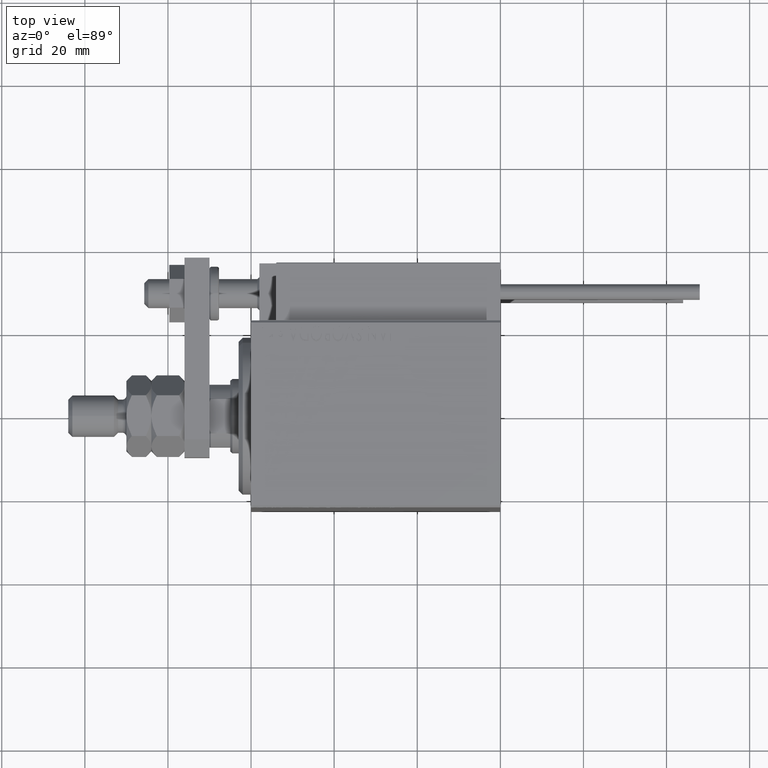
[diagram: clean part render]
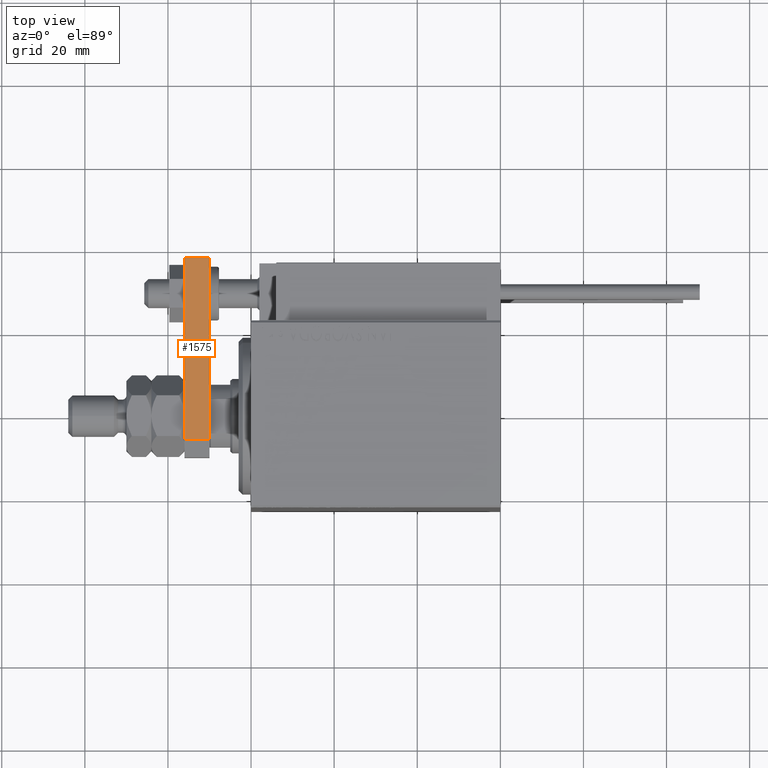
[diagram: same view with one face highlighted and labeled with its STEP entity id]
A machine part, top view. The second image highlights one B-rep face of the part: STEP entity #1575.
In plain terms, the highlighted planar face has unit normal (-0, -0, -1).
Its self-contained STEP definition (entity closure, byte-faithful):
#1053 = CARTESIAN_POINT ( 'NONE',  ( 10.00000000000000533, 4.239999999999986890, 6.000000000000000000 ) ) ;
#1575 = ADVANCED_FACE ( 'NONE', ( #2107 ), #30173, .F. ) ;
#2107 = FACE_OUTER_BOUND ( 'NONE', #35518, .T. ) ;
#2890 = DIRECTION ( 'NONE',  ( 7.228014483236695816E-17, -1.000000000000000000, 0.000000000000000000 ) ) ;
#3029 = LINE ( 'NONE', #3286, #21437 ) ;
#3286 = CARTESIAN_POINT ( 'NONE',  ( 10.00000000000000533, 0.000000000000000000, 6.000000000000000000 ) ) ;
#6557 = EDGE_CURVE ( 'NONE', #10306, #34316, #3029, .T. ) ;
#6580 = CARTESIAN_POINT ( 'NONE',  ( 10.00000000000000533, 0.000000000000000000, 6.000000000000000000 ) ) ;
#10306 = VERTEX_POINT ( 'NONE', #1053 ) ;
#10883 = CARTESIAN_POINT ( 'NONE',  ( 10.00000000000000533, 0.000000000000000000, 0.000000000000000000 ) ) ;
#12530 = ORIENTED_EDGE ( 'NONE', *, *, #27684, .T. ) ;
#14821 = LINE ( 'NONE', #10883, #21333 ) ;
#15830 = CARTESIAN_POINT ( 'NONE',  ( 10.00000000000000178, 48.00000000000000000, 6.000000000000000000 ) ) ;
#16558 = CARTESIAN_POINT ( 'NONE',  ( 10.00000000000000533, 4.239999999999986890, 6.000000000000000000 ) ) ;
#17356 = VERTEX_POINT ( 'NONE', #26680 ) ;
#21333 = VECTOR ( 'NONE', #26375, 1000.000000000000000 ) ;
#21437 = VECTOR ( 'NONE', #31365, 1000.000000000000000 ) ;
#25992 = DIRECTION ( 'NONE',  ( -1.000000000000000000, -7.228014483236695816E-17, 0.000000000000000000 ) ) ;
#26375 = DIRECTION ( 'NONE',  ( -7.228014483236695816E-17, 1.000000000000000000, 0.000000000000000000 ) ) ;
#26523 = VERTEX_POINT ( 'NONE', #37238 ) ;
#26680 = CARTESIAN_POINT ( 'NONE',  ( 10.00000000000000533, 4.239999999999986890, 0.000000000000000000 ) ) ;
#27684 = EDGE_CURVE ( 'NONE', #17356, #26523, #14821, .T. ) ;
#28198 = EDGE_CURVE ( 'NONE', #10306, #17356, #36499, .T. ) ;
#28722 = ORIENTED_EDGE ( 'NONE', *, *, #6557, .F. ) ;
#30173 = PLANE ( 'NONE',  #30480 ) ;
#30480 = AXIS2_PLACEMENT_3D ( 'NONE', #6580, #25992, #2890 ) ;
#31319 = CARTESIAN_POINT ( 'NONE',  ( 10.00000000000000178, 48.00000000000000000, 6.000000000000000000 ) ) ;
#31365 = DIRECTION ( 'NONE',  ( -7.228014483236695816E-17, 1.000000000000000000, 0.000000000000000000 ) ) ;
#32258 = VECTOR ( 'NONE', #32554, 1000.000000000000000 ) ;
#32554 = DIRECTION ( 'NONE',  ( 0.000000000000000000, 0.000000000000000000, -1.000000000000000000 ) ) ;
#34316 = VERTEX_POINT ( 'NONE', #15830 ) ;
#35253 = LINE ( 'NONE', #31319, #50910 ) ;
#35518 = EDGE_LOOP ( 'NONE', ( #28722, #39043, #12530, #46080 ) ) ;
#36499 = LINE ( 'NONE', #16558, #32258 ) ;
#36592 = EDGE_CURVE ( 'NONE', #34316, #26523, #35253, .T. ) ;
#37238 = CARTESIAN_POINT ( 'NONE',  ( 10.00000000000000178, 48.00000000000000000, 0.000000000000000000 ) ) ;
#39043 = ORIENTED_EDGE ( 'NONE', *, *, #28198, .T. ) ;
#39451 = DIRECTION ( 'NONE',  ( -0.000000000000000000, -0.000000000000000000, -1.000000000000000000 ) ) ;
#46080 = ORIENTED_EDGE ( 'NONE', *, *, #36592, .F. ) ;
#50910 = VECTOR ( 'NONE', #39451, 1000.000000000000000 ) ;